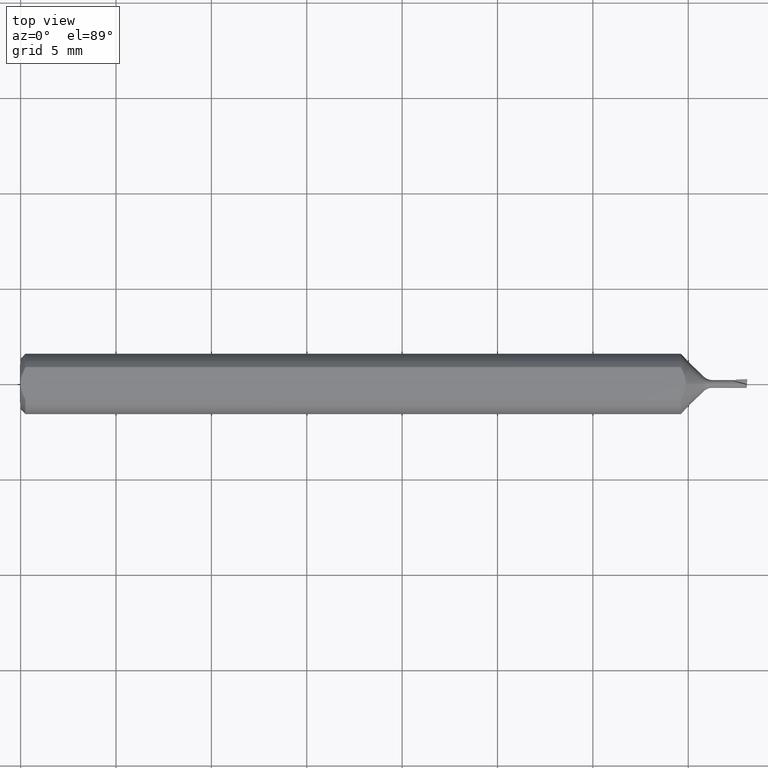
[diagram: clean part render]
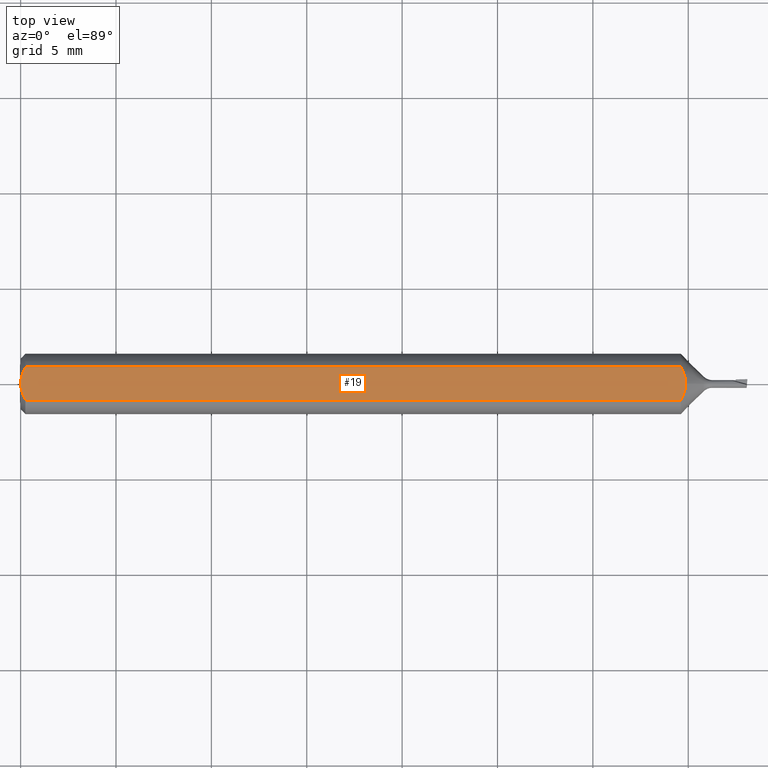
[diagram: same view with one face highlighted and labeled with its STEP entity id]
A machine part, top view. The second image highlights one B-rep face of the part: STEP entity #19.
In plain terms, the highlighted planar face has unit normal (0, 0, -1).
Its self-contained STEP definition (entity closure, byte-faithful):
#5 = EDGE_LOOP ( 'NONE', ( #680, #18, #164, #569, #694, #367 ) ) ;
#16 = CARTESIAN_POINT ( 'NONE',  ( 1.367985771068365164, -0.02321109678391105810, 0.05235000000000001458 ) ) ;
#17 = DIRECTION ( 'NONE',  ( -1.000000000000000000, -0.000000000000000000, -0.000000000000000000 ) ) ;
#18 = ORIENTED_EDGE ( 'NONE', *, *, #336, .T. ) ;
#19 = ADVANCED_FACE ( 'NONE', ( #267 ), #48, .F. ) ;
#24 = CARTESIAN_POINT ( 'NONE',  ( 1.372649999999999926, 4.307014571141468397E-21, 0.05235000000000001458 ) ) ;
#48 = PLANE ( 'NONE',  #646 ) ;
#53 = VERTEX_POINT ( 'NONE', #432 ) ;
#56 = VECTOR ( 'NONE', #17, 39.37007874015748143 ) ;
#59 = CARTESIAN_POINT ( 'NONE',  ( 1.371579082550520745, 0.01191445041138213153, 0.05235000000000001458 ) ) ;
#68 = CARTESIAN_POINT ( 'NONE',  ( 0.000000000000000000, 0.000000000000000000, 0.05235000000000005621 ) ) ;
#80 = CARTESIAN_POINT ( 'NONE',  ( 1.371577944566060525, -0.01191841935955603726, 0.05235000000000002152 ) ) ;
#108 = B_SPLINE_CURVE_WITH_KNOTS ( 'NONE', 3,
 ( #127, #348, #679, #59, #124, #404 ),
 .UNSPECIFIED., .F., .F.,
 ( 4, 2, 4 ),
 ( 0.002206836618262071094, 0.002655951637760988696, 0.003105066657259906299 ),
 .UNSPECIFIED. ) ;
#113 = EDGE_CURVE ( 'NONE', #53, #688, #711, .T. ) ;
#121 = EDGE_CURVE ( 'NONE', #467, #642, #108, .T. ) ;
#124 = CARTESIAN_POINT ( 'NONE',  ( 1.372650000000000148, 0.005922000946320196864, 0.05235000000000002152 ) ) ;
#127 = CARTESIAN_POINT ( 'NONE',  ( 1.362649999999999917, 0.03386738844375221380, 0.05235000000000000070 ) ) ;
#145 = B_SPLINE_CURVE_WITH_KNOTS ( 'NONE', 3,
 ( #423, #528, #203, #299, #480, #247 ),
 .UNSPECIFIED., .F., .F.,
 ( 4, 2, 4 ),
 ( 0.0009229516234079799489, 0.001371626545108142140, 0.001820301466808304115 ),
 .UNSPECIFIED. ) ;
#164 = ORIENTED_EDGE ( 'NONE', *, *, #210, .T. ) ;
#184 = CARTESIAN_POINT ( 'NONE',  ( 1.372649999999999926, 4.307014571141468397E-21, 0.05235000000000001458 ) ) ;
#188 = CARTESIAN_POINT ( 'NONE',  ( 0.01000000000000849862, -0.03386738844395138781, 0.05235000000000001458 ) ) ;
#192 = VERTEX_POINT ( 'NONE', #342 ) ;
#193 = CARTESIAN_POINT ( 'NONE',  ( 1.372649999999999926, -0.005922793856370157060, 0.05235000000000002152 ) ) ;
#197 = CARTESIAN_POINT ( 'NONE',  ( 1.365493310265788907, -0.02863284266924762123, 0.05235000000000002152 ) ) ;
#203 = CARTESIAN_POINT ( 'NONE',  ( 0.004671770759546972629, 0.02323517832780105929, 0.05235000000000002152 ) ) ;
#210 = EDGE_CURVE ( 'NONE', #629, #688, #527, .T. ) ;
#247 = CARTESIAN_POINT ( 'NONE',  ( 0.000000000000000000, 0.000000000000000000, 0.05235000000000005621 ) ) ;
#267 = FACE_OUTER_BOUND ( 'NONE', #5, .T. ) ;
#282 = LINE ( 'NONE', #350, #650 ) ;
#299 = CARTESIAN_POINT ( 'NONE',  ( 0.001063697276021615887, 0.01189177144351694602, 0.05235000000000001458 ) ) ;
#313 = CARTESIAN_POINT ( 'NONE',  ( 0.01000000000000849862, -0.03386738844395138781, 0.05235000000000001458 ) ) ;
#336 = EDGE_CURVE ( 'NONE', #192, #629, #145, .T. ) ;
#342 = CARTESIAN_POINT ( 'NONE',  ( 0.01000000000000002970, 0.03386738844375219992, 0.05235000000000001458 ) ) ;
#348 = CARTESIAN_POINT ( 'NONE',  ( 1.365497562589150560, 0.02862501412462241726, 0.05235000000000001458 ) ) ;
#350 = CARTESIAN_POINT ( 'NONE',  ( 0.000000000000000000, 0.03386738844375221380, 0.05235000000000000070 ) ) ;
#357 = CARTESIAN_POINT ( 'NONE',  ( 1.362649999999999917, -0.03386738844375221380, 0.05235000000000000070 ) ) ;
#367 = ORIENTED_EDGE ( 'NONE', *, *, #121, .F. ) ;
#382 = DIRECTION ( 'NONE',  ( 0.000000000000000000, 0.000000000000000000, -1.000000000000000000 ) ) ;
#397 = DIRECTION ( 'NONE',  ( 1.000000000000000000, 0.000000000000000000, 0.000000000000000000 ) ) ;
#404 = CARTESIAN_POINT ( 'NONE',  ( 1.372649999999999926, 4.307014571141468397E-21, 0.05235000000000001458 ) ) ;
#423 = CARTESIAN_POINT ( 'NONE',  ( 0.01000000000000002970, 0.03386738844375219992, 0.05235000000000001458 ) ) ;
#432 = CARTESIAN_POINT ( 'NONE',  ( 1.362649999999999917, -0.03386738844375221380, 0.05235000000000000070 ) ) ;
#457 = CARTESIAN_POINT ( 'NONE',  ( 0.000000000000000000, 0.000000000000000000, 0.05235000000000005621 ) ) ;
#461 = CARTESIAN_POINT ( 'NONE',  ( 0.004679365186825891129, -0.02325953974091121701, 0.05235000000000001458 ) ) ;
#466 = CARTESIAN_POINT ( 'NONE',  ( 0.001055043921644822393, -0.01186408073217191939, 0.05235000000000002152 ) ) ;
#467 = VERTEX_POINT ( 'NONE', #655 ) ;
#480 = CARTESIAN_POINT ( 'NONE',  ( -8.220221318826182316E-16, 0.005954997531774002505, 0.05235000000000002152 ) ) ;
#514 = EDGE_CURVE ( 'NONE', #192, #467, #282, .T. ) ;
#527 = B_SPLINE_CURVE_WITH_KNOTS ( 'NONE', 3,
 ( #457, #670, #466, #461, #559, #188 ),
 .UNSPECIFIED., .F., .F.,
 ( 4, 2, 4 ),
 ( 0.001820301466808304115, 0.002269751589840577830, 0.002719201712872851544 ),
 .UNSPECIFIED. ) ;
#528 = CARTESIAN_POINT ( 'NONE',  ( 0.007185421074056372141, 0.02868573718286560742, 0.05235000000000002152 ) ) ;
#559 = CARTESIAN_POINT ( 'NONE',  ( 0.007163450771416336217, -0.02864528976632487248, 0.05235000000000002152 ) ) ;
#569 = ORIENTED_EDGE ( 'NONE', *, *, #113, .F. ) ;
#608 = DIRECTION ( 'NONE',  ( -1.000000000000000000, 0.000000000000000000, -0.000000000000000000 ) ) ;
#629 = VERTEX_POINT ( 'NONE', #68 ) ;
#642 = VERTEX_POINT ( 'NONE', #184 ) ;
#646 = AXIS2_PLACEMENT_3D ( 'NONE', #704, #382, #608 ) ;
#650 = VECTOR ( 'NONE', #397, 39.37007874015748143 ) ;
#655 = CARTESIAN_POINT ( 'NONE',  ( 1.362649999999999917, 0.03386738844375221380, 0.05235000000000000070 ) ) ;
#670 = CARTESIAN_POINT ( 'NONE',  ( -8.015716218470392500E-16, -0.005965286321711139698, 0.05235000000000002152 ) ) ;
#679 = CARTESIAN_POINT ( 'NONE',  ( 1.367985494534934121, 0.02321235750386541410, 0.05235000000000003539 ) ) ;
#680 = ORIENTED_EDGE ( 'NONE', *, *, #514, .F. ) ;
#688 = VERTEX_POINT ( 'NONE', #313 ) ;
#694 = ORIENTED_EDGE ( 'NONE', *, *, #702, .F. ) ;
#699 = B_SPLINE_CURVE_WITH_KNOTS ( 'NONE', 3,
 ( #24, #193, #80, #16, #197, #357 ),
 .UNSPECIFIED., .F., .F.,
 ( 4, 2, 4 ),
 ( 0.003105066657259906299, 0.003554241809780714790, 0.004003416962301523281 ),
 .UNSPECIFIED. ) ;
#701 = CARTESIAN_POINT ( 'NONE',  ( 0.000000000000000000, -0.03386738844375221380, 0.05235000000000000070 ) ) ;
#702 = EDGE_CURVE ( 'NONE', #642, #53, #699, .T. ) ;
#704 = CARTESIAN_POINT ( 'NONE',  ( 1.500000000000000222, 0.06235000000000000264, 0.05235000000000001458 ) ) ;
#711 = LINE ( 'NONE', #701, #56 ) ;